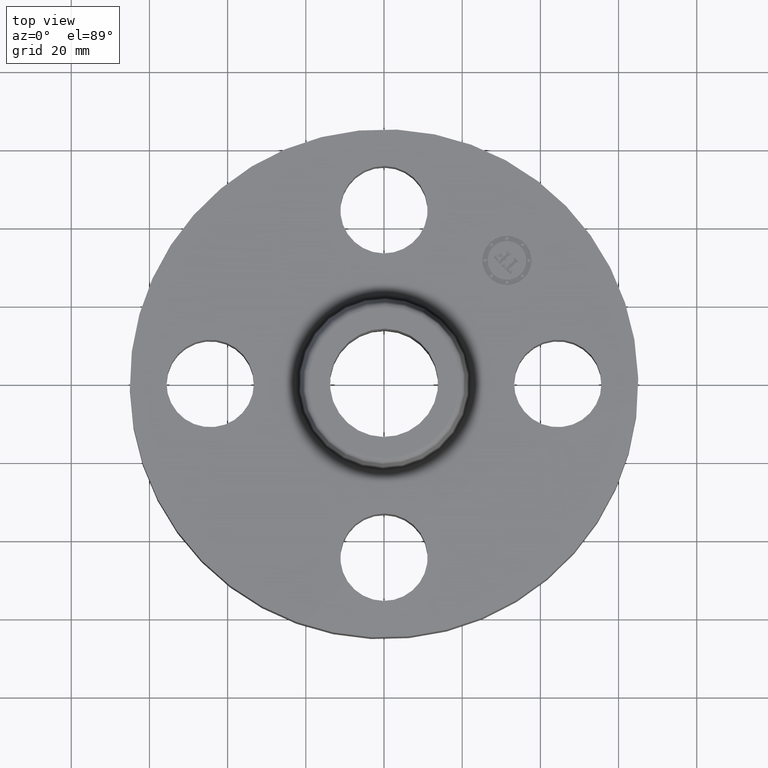
[diagram: clean part render]
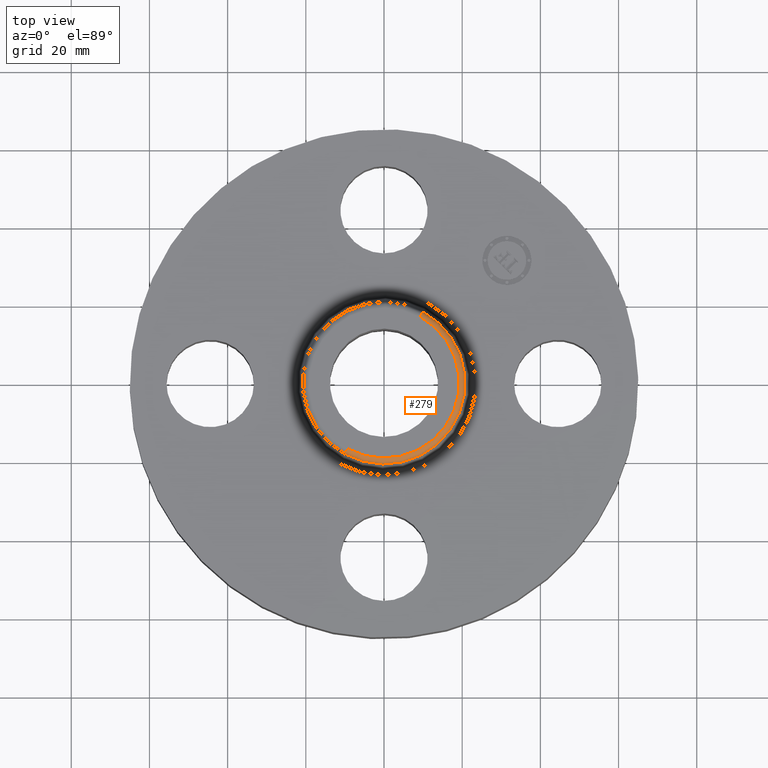
[diagram: same view with one face highlighted and labeled with its STEP entity id]
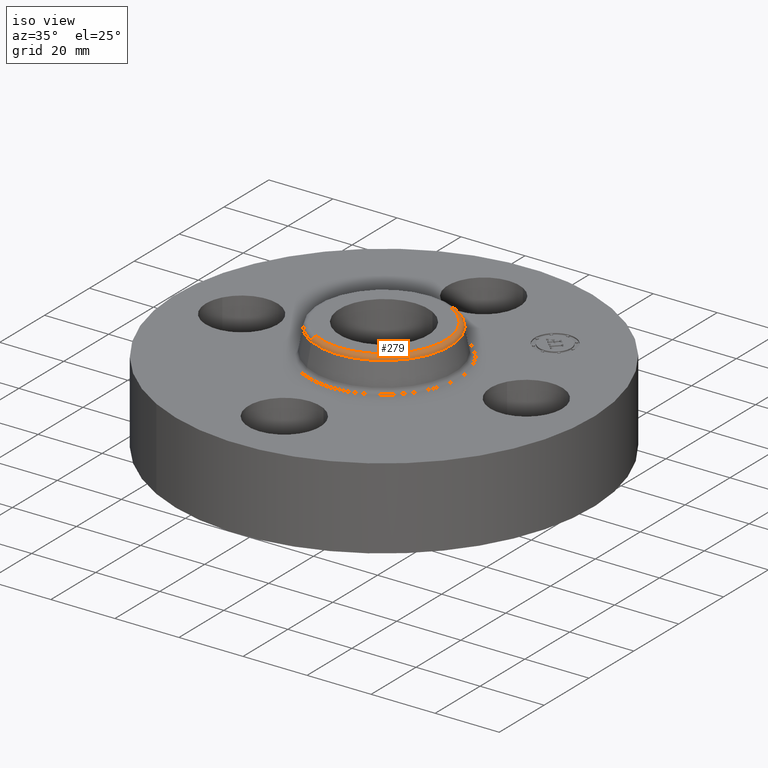
[diagram: same view with one face highlighted and labeled with its STEP entity id]
A machine part, top view. The second image highlights one B-rep face of the part: STEP entity #279.
A second angle (iso view) of the same face is appended — the face is thin or edge-on in the first view.
In plain terms, the highlighted toroidal blend (fillet) surface has major radius 19.2443 mm and minor (blend) radius 1.524 mm.
Its self-contained STEP definition (entity closure, byte-faithful):
#220=AXIS2_PLACEMENT_3D('Circle Axis2P3D',#218,#219,$) ;
#252=AXIS2_PLACEMENT_3D('Torus Axis2P3D',#249,#250,#251) ;
#256=AXIS2_PLACEMENT_3D('Circle Axis2P3D',#254,#255,$) ;
#263=AXIS2_PLACEMENT_3D('Circle Axis2P3D',#261,#262,$) ;
#270=AXIS2_PLACEMENT_3D('Circle Axis2P3D',#268,#269,$) ;
#215=CARTESIAN_POINT('Vertex',(0.391565168043,0.716755232353,1.33041889067)) ;
#218=CARTESIAN_POINT('Axis2P3D Location',(0.,0.,1.33041889067)) ;
#222=CARTESIAN_POINT('Vertex',(-0.391565168043,-0.716755232353,1.33041889067)) ;
#249=CARTESIAN_POINT('Axis2P3D Location',(0.,0.,1.32000000001)) ;
#254=CARTESIAN_POINT('Axis2P3D Location',(0.363236648798,0.664900225701,1.32000000001)) ;
#258=CARTESIAN_POINT('Vertex',(0.363236648798,0.664900225701,1.38000000001)) ;
#261=CARTESIAN_POINT('Axis2P3D Location',(0.,0.,1.38000000001)) ;
#265=CARTESIAN_POINT('Vertex',(-0.363236648798,-0.664900225701,1.38000000001)) ;
#268=CARTESIAN_POINT('Axis2P3D Location',(-0.363236648798,-0.664900225701,1.32000000001)) ;
#219=DIRECTION('Axis2P3D Direction',(0.,0.,-0.0393700787402)) ;
#250=DIRECTION('Axis2P3D Direction',(0.,0.,-0.0393700787402)) ;
#251=DIRECTION('Axis2P3D XDirection',(-0.0188750212049,-0.0345504945626,0.)) ;
#255=DIRECTION('Axis2P3D Direction',(-0.0345504945626,0.0188750212049,0.)) ;
#262=DIRECTION('Axis2P3D Direction',(0.,0.,-0.0393700787402)) ;
#269=DIRECTION('Axis2P3D Direction',(0.0345504945626,-0.0188750212049,0.)) ;
#274=ORIENTED_EDGE('',*,*,#224,.F.) ;
#275=ORIENTED_EDGE('',*,*,#260,.T.) ;
#276=ORIENTED_EDGE('',*,*,#267,.T.) ;
#277=ORIENTED_EDGE('',*,*,#272,.F.) ;
#279=ADVANCED_FACE('PartBody',(#278),#253,.T.) ;
#221=CIRCLE('generated circle',#220,0.816738234644) ;
#257=CIRCLE('generated circle',#256,0.0600000000002) ;
#264=CIRCLE('generated circle',#263,0.757649769463) ;
#271=CIRCLE('generated circle',#270,0.0600000000002) ;
#253=TOROIDAL_SURFACE('homeo Torus',#252,0.757649769463,0.0600000000002) ;
#224=EDGE_CURVE('',#216,#223,#221,.T.) ;
#260=EDGE_CURVE('',#216,#259,#257,.F.) ;
#267=EDGE_CURVE('',#259,#266,#264,.T.) ;
#272=EDGE_CURVE('',#223,#266,#271,.F.) ;
#273=EDGE_LOOP('',(#274,#275,#276,#277)) ;
#278=FACE_OUTER_BOUND('',#273,.T.) ;
#216=VERTEX_POINT('',#215) ;
#223=VERTEX_POINT('',#222) ;
#259=VERTEX_POINT('',#258) ;
#266=VERTEX_POINT('',#265) ;